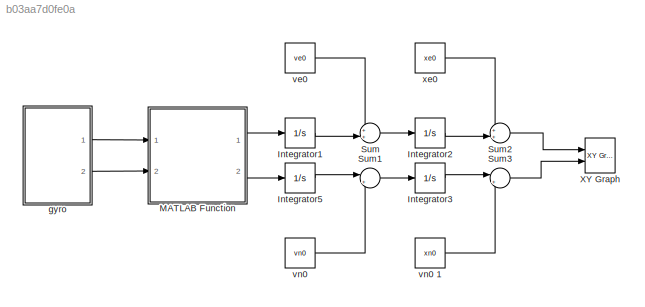
MODEL slx_b03aa7d0fe0a
KIND model
CONFIG AbsTol = auto
CONFIG EnableMultiTasking = off
CONFIG FixedStep = auto
CONFIG MaxStep = auto
CONFIG MinStep = auto
CONFIG RelTol = 1e-3
CONFIG SampleTimeConstraint = Unconstrained
CONFIG Solver = VariableStepAuto
CONFIG SolverName = VariableStepAuto
CONFIG StartTime = 0.0
CONFIG StopTime = 100
BLOCK [Integrator] Integrator1
  Ports = [1, 1]
BLOCK [Integrator] Integrator2
  Ports = [1, 1]
BLOCK [Integrator] Integrator3
  Ports = [1, 1]
BLOCK [Integrator] Integrator5
  Ports = [1, 1]
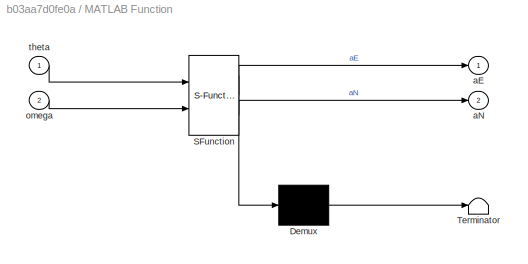
BLOCK [SubSystem] MATLAB Function
  ErrorFcn = Stateflow.Translate.translate
  PermitHierarchicalResolution = ExplicitOnly
  Ports = [2, 2]
  RequestExecContextInheritance = off
  SFBlockType = MATLAB Function
  TreatAsAtomicUnit = on
  Variant = off
BLOCK [Demux] MATLAB Function/ Demux 
  Outputs = 1
  Ports = [1, 1]
BLOCK [S-Function] MATLAB Function/ SFunction 
  EnableBusSupport = on
  FunctionName = sf_sfun
  PortCounts = [2 3]
  Ports = [2, 3]
  SFcnIsStateOwnerBlock = off
  SFunctionDeploymentMode = off
  Tag = Stateflow S-Function Origem 2
BLOCK [Terminator] MATLAB Function/ Terminator 
BLOCK [Outport] MATLAB Function/aE
  IconDisplay = Port number
BLOCK [Outport] MATLAB Function/aN
  IconDisplay = Port number
  Port = 2
BLOCK [Inport] MATLAB Function/omega
  IconDisplay = Port number
  Port = 2
BLOCK [Inport] MATLAB Function/theta
  IconDisplay = Port number
BLOCK [Sum] Sum
  IconShape = round
  InputSameDT = off
  Inputs = ++|
  OutDataTypeStr = Inherit: Inherit via internal rule
  Ports = [2, 1]
  SaturateOnIntegerOverflow = off
BLOCK [Sum] Sum1
  IconShape = round
  InputSameDT = off
  Inputs = |++
  OutDataTypeStr = Inherit: Inherit via internal rule
  Ports = [2, 1]
  SaturateOnIntegerOverflow = off
BLOCK [Sum] Sum2
  IconShape = round
  InputSameDT = off
  Inputs = ++|
  OutDataTypeStr = Inherit: Inherit via internal rule
  Ports = [2, 1]
  SaturateOnIntegerOverflow = off
BLOCK [Sum] Sum3
  IconShape = round
  InputSameDT = off
  Inputs = |++
  OutDataTypeStr = Inherit: Inherit via internal rule
  Ports = [2, 1]
  SaturateOnIntegerOverflow = off
BLOCK [Reference] XY Graph  REF=simulink/Sinks/XY Graph
  Ports = [2]
  SourceBlock = simulink/Sinks/XY Graph
  SourceProductBaseCode = SL
  SourceProductName = Simulink
  SourceType = XY scope.
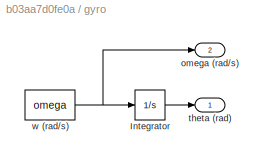
BLOCK [SubSystem] gyro
  Ports = [0, 2]
  RequestExecContextInheritance = off
  Variant = off
BLOCK [Integrator] gyro/Integrator
  InitialCondition = A0
  Ports = [1, 1]
BLOCK [Outport] gyro/omega (rad//s)
  IconDisplay = Port number
  Port = 2
BLOCK [Outport] gyro/theta (rad)
  IconDisplay = Port number
BLOCK [Constant] gyro/w (rad//s)
  Value = omega
BLOCK [Constant] ve0
  Value = ve0
BLOCK [Constant] vn0 
  Value = vn0
BLOCK [Constant] vn0 1
  Value = xn0
BLOCK [Constant] xe0
  Value = xe0
LINE Integrator1:1 -> Sum:2
LINE Integrator2:1 -> Sum2:2
LINE Integrator3:1 -> Sum3:1
LINE Integrator5:1 -> Sum1:1
LINE MATLAB Function:1 -> Integrator1:1
LINE MATLAB Function:2 -> Integrator5:1
LINE Sum1:1 -> Integrator3:1
LINE Sum2:1 -> XY Graph:1
LINE Sum3:1 -> XY Graph:2
LINE Sum:1 -> Integrator2:1
LINE gyro/Integrator:1 -> gyro/theta (rad):1
NET gyro/w (rad//s):1 -> gyro/Integrator:1, gyro/omega (rad//s):1
LINE gyro:1 -> MATLAB Function:1
LINE gyro:2 -> MATLAB Function:2
LINE ve0:1 -> Sum:1
LINE vn0 1:1 -> Sum3:2
LINE vn0 :1 -> Sum1:2
LINE xe0:1 -> Sum2:1
note: NET lines group one-source signal fan-out (src -> all destinations, sorted); 1:1 wires keep LINE
CHART MATLAB Function states=1 transitions=1
  STATE_LABEL 'eML_blk_kernel()'
  STATE_LABEL "SCRIPT:\nfunction [aE, aN]= fun(theta, omega)\n\nR = 10;\n\nax = omega^2 * R;\nay = 0;\n\nAb = [ax ay]';\n% Saída.\n% ======\nR_b2n = [ +cos(theta)   sin(theta);\n          -sin(theta)   cos(theta)];\n      \nR = R_b2n * Ab;\naE = R(1);\naN = R(2);\n\n      \n      \n\n"
